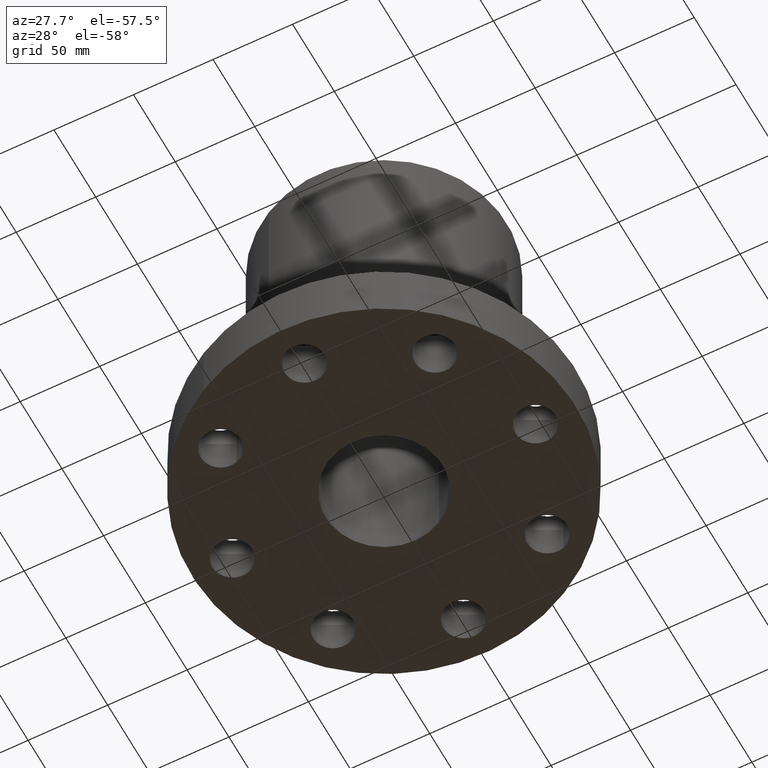
[diagram: clean part render]
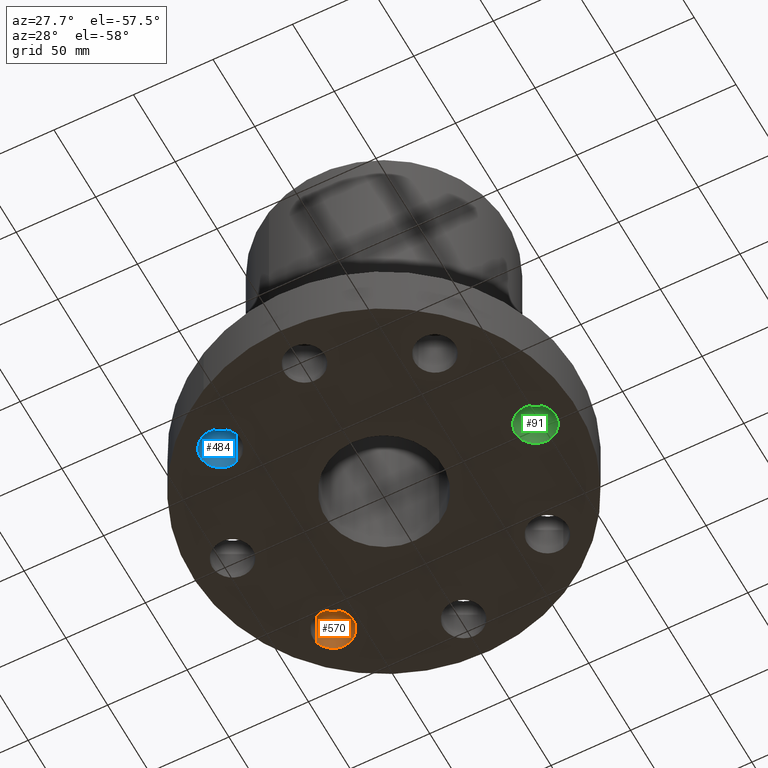
[diagram: same view with three faces highlighted in distinct colors, each labeled with its STEP entity id]
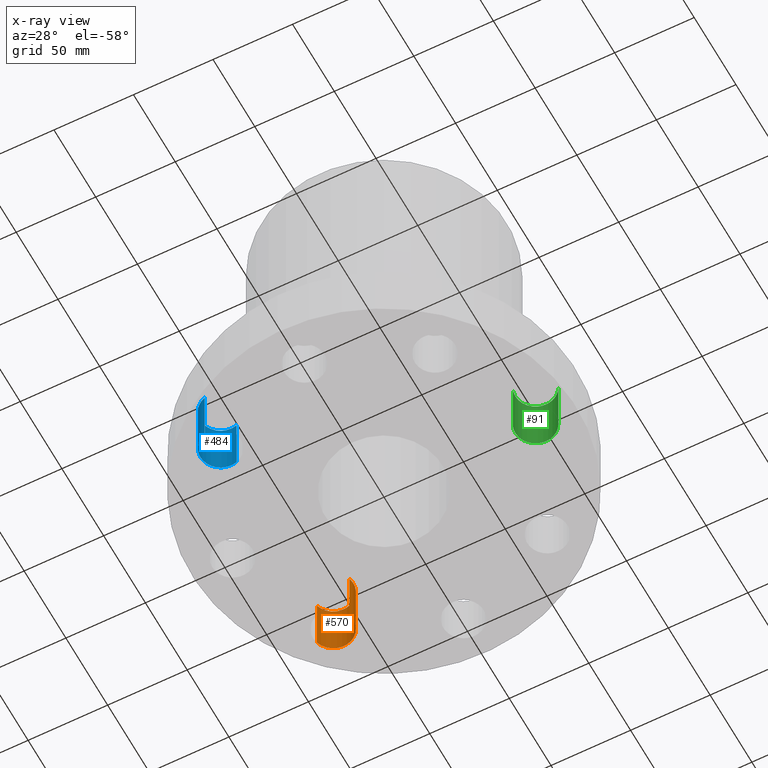
[diagram: x-ray of the same camera — body ghosted, the three highlighted faces saturated]
A machine part, auxiliary view with three faces highlighted in distinct colors.
The next image is the same camera in x-ray (body ghosted, the three faces saturated) — at least one of them is partly hidden behind the body in this view.
Their STEP definitions:

[orange] entity #570 — the highlighted cylindrical surface (edge-blend (fillet) strip) has radius 12.7 mm, axis along (0, 0, 1).
#220=AXIS2_PLACEMENT_3D('Circle Axis2P3D',#218,#219,$) ;
#543=AXIS2_PLACEMENT_3D('Cylinder Axis2P3D',#540,#541,#542) ;
#561=AXIS2_PLACEMENT_3D('Circle Axis2P3D',#559,#560,$) ;
#213=CARTESIAN_POINT('Vertex',(-2.17187561447,2.51088066389,1.50000000001)) ;
#215=CARTESIAN_POINT('Vertex',(-3.13142524445,2.79242019503,1.50000000001)) ;
#218=CARTESIAN_POINT('Axis2P3D Location',(-2.65165042946,2.65165042946,1.50000000001)) ;
#540=CARTESIAN_POINT('Axis2P3D Location',(-2.65165042946,2.65165042946,0.00393700787402)) ;
#545=CARTESIAN_POINT('Line Origine',(-2.17187561447,2.51088066389,0.750000000003)) ;
#549=CARTESIAN_POINT('Vertex',(-2.17187561447,2.51088066389,2.2401153548E-016)) ;
#552=CARTESIAN_POINT('Line Origine',(-3.13142524445,2.79242019503,0.750000000003)) ;
#556=CARTESIAN_POINT('Vertex',(-3.13142524445,2.79242019503,2.2401153548E-016)) ;
#559=CARTESIAN_POINT('Axis2P3D Location',(-2.65165042946,2.65165042946,0.)) ;
#219=DIRECTION('Axis2P3D Direction',(0.,0.,-0.0393700787402)) ;
#541=DIRECTION('Axis2P3D Direction',(0.,0.,0.0393700787402)) ;
#542=DIRECTION('Axis2P3D XDirection',(-0.0377775444876,0.0110842335096,0.)) ;
#546=DIRECTION('Vector Direction',(0.,0.,0.0393700787402)) ;
#553=DIRECTION('Vector Direction',(0.,0.,0.0393700787402)) ;
#560=DIRECTION('Axis2P3D Direction',(0.,0.,0.0393700787402)) ;
#547=VECTOR('Line Direction',#546,0.0393700787402) ;
#554=VECTOR('Line Direction',#553,0.0393700787402) ;
#565=ORIENTED_EDGE('',*,*,#551,.F.) ;
#566=ORIENTED_EDGE('',*,*,#222,.F.) ;
#567=ORIENTED_EDGE('',*,*,#558,.T.) ;
#568=ORIENTED_EDGE('',*,*,#563,.T.) ;
#570=ADVANCED_FACE('PartBody',(#569),#544,.F.) ;
#221=CIRCLE('generated circle',#220,0.500000000002) ;
#562=CIRCLE('generated circle',#561,0.500000000002) ;
#544=CYLINDRICAL_SURFACE('generated cylinder',#543,0.500000000002) ;
#222=EDGE_CURVE('',#216,#214,#221,.T.) ;
#551=EDGE_CURVE('',#214,#550,#548,.F.) ;
#558=EDGE_CURVE('',#216,#557,#555,.F.) ;
#563=EDGE_CURVE('',#557,#550,#562,.F.) ;
#564=EDGE_LOOP('',(#565,#566,#567,#568)) ;
#569=FACE_OUTER_BOUND('',#564,.T.) ;
#548=LINE('Line',#545,#547) ;
#555=LINE('Line',#552,#554) ;
#214=VERTEX_POINT('',#213) ;
#216=VERTEX_POINT('',#215) ;
#550=VERTEX_POINT('',#549) ;
#557=VERTEX_POINT('',#556) ;

[blue] entity #484 — the highlighted cylindrical surface (edge-blend (fillet) strip) has radius 12.7 mm, axis along (0, 0, 1).
#184=AXIS2_PLACEMENT_3D('Circle Axis2P3D',#182,#183,$) ;
#457=AXIS2_PLACEMENT_3D('Cylinder Axis2P3D',#454,#455,#456) ;
#475=AXIS2_PLACEMENT_3D('Circle Axis2P3D',#473,#474,$) ;
#177=CARTESIAN_POINT('Vertex',(-2.51088066389,-2.17187561447,1.50000000001)) ;
#179=CARTESIAN_POINT('Vertex',(-2.79242019503,-3.13142524445,1.50000000001)) ;
#182=CARTESIAN_POINT('Axis2P3D Location',(-2.65165042946,-2.65165042946,1.50000000001)) ;
#454=CARTESIAN_POINT('Axis2P3D Location',(-2.65165042946,-2.65165042946,0.00393700787402)) ;
#459=CARTESIAN_POINT('Line Origine',(-2.51088066389,-2.17187561447,0.750000000003)) ;
#463=CARTESIAN_POINT('Vertex',(-2.51088066389,-2.17187561447,2.2401153548E-016)) ;
#466=CARTESIAN_POINT('Line Origine',(-2.79242019503,-3.13142524445,0.750000000003)) ;
#470=CARTESIAN_POINT('Vertex',(-2.79242019503,-3.13142524445,2.2401153548E-016)) ;
#473=CARTESIAN_POINT('Axis2P3D Location',(-2.65165042946,-2.65165042946,0.)) ;
#183=DIRECTION('Axis2P3D Direction',(0.,0.,-0.0393700787402)) ;
#455=DIRECTION('Axis2P3D Direction',(0.,0.,0.0393700787402)) ;
#456=DIRECTION('Axis2P3D XDirection',(-0.0110842335096,-0.0377775444876,0.)) ;
#460=DIRECTION('Vector Direction',(0.,0.,0.0393700787402)) ;
#467=DIRECTION('Vector Direction',(0.,0.,0.0393700787402)) ;
#474=DIRECTION('Axis2P3D Direction',(0.,0.,0.0393700787402)) ;
#461=VECTOR('Line Direction',#460,0.0393700787402) ;
#468=VECTOR('Line Direction',#467,0.0393700787402) ;
#479=ORIENTED_EDGE('',*,*,#465,.F.) ;
#480=ORIENTED_EDGE('',*,*,#186,.F.) ;
#481=ORIENTED_EDGE('',*,*,#472,.T.) ;
#482=ORIENTED_EDGE('',*,*,#477,.T.) ;
#484=ADVANCED_FACE('PartBody',(#483),#458,.F.) ;
#185=CIRCLE('generated circle',#184,0.500000000002) ;
#476=CIRCLE('generated circle',#475,0.500000000002) ;
#458=CYLINDRICAL_SURFACE('generated cylinder',#457,0.500000000002) ;
#186=EDGE_CURVE('',#180,#178,#185,.T.) ;
#465=EDGE_CURVE('',#178,#464,#462,.F.) ;
#472=EDGE_CURVE('',#180,#471,#469,.F.) ;
#477=EDGE_CURVE('',#471,#464,#476,.F.) ;
#478=EDGE_LOOP('',(#479,#480,#481,#482)) ;
#483=FACE_OUTER_BOUND('',#478,.T.) ;
#462=LINE('Line',#459,#461) ;
#469=LINE('Line',#466,#468) ;
#178=VERTEX_POINT('',#177) ;
#180=VERTEX_POINT('',#179) ;
#464=VERTEX_POINT('',#463) ;
#471=VERTEX_POINT('',#470) ;

[green] entity #91 — the highlighted cylindrical surface (edge-blend (fillet) strip) has radius 12.7 mm, axis along (0, -0, 1).
#38=AXIS2_PLACEMENT_3D('Cylinder Axis2P3D',#35,#36,#37) ;
#77=AXIS2_PLACEMENT_3D('Circle Axis2P3D',#75,#76,$) ;
#82=AXIS2_PLACEMENT_3D('Circle Axis2P3D',#80,#81,$) ;
#35=CARTESIAN_POINT('Axis2P3D Location',(3.75000000002,0.,0.00393700787402)) ;
#40=CARTESIAN_POINT('Line Origine',(3.31120871907,-0.239712769303,0.750000000003)) ;
#44=CARTESIAN_POINT('Vertex',(3.31120871907,-0.239712769303,1.50000000001)) ;
#46=CARTESIAN_POINT('Vertex',(3.31120871907,-0.239712769303,2.2401153548E-016)) ;
#53=CARTESIAN_POINT('Vertex',(4.18879128096,0.239712769303,1.50000000001)) ;
#56=CARTESIAN_POINT('Line Origine',(4.18879128096,0.239712769303,0.750000000003)) ;
#60=CARTESIAN_POINT('Vertex',(4.18879128096,0.239712769303,2.2401153548E-016)) ;
#75=CARTESIAN_POINT('Axis2P3D Location',(3.75000000002,0.,1.50000000001)) ;
#80=CARTESIAN_POINT('Axis2P3D Location',(3.75000000002,0.,0.)) ;
#36=DIRECTION('Axis2P3D Direction',(0.,-0.,0.0393700787402)) ;
#37=DIRECTION('Axis2P3D XDirection',(0.0345504945626,0.0188750212049,0.)) ;
#41=DIRECTION('Vector Direction',(0.,0.,0.0393700787402)) ;
#57=DIRECTION('Vector Direction',(0.,0.,0.0393700787402)) ;
#76=DIRECTION('Axis2P3D Direction',(0.,-0.,0.0393700787402)) ;
#81=DIRECTION('Axis2P3D Direction',(0.,-0.,0.0393700787402)) ;
#42=VECTOR('Line Direction',#41,0.0393700787402) ;
#58=VECTOR('Line Direction',#57,0.0393700787402) ;
#86=ORIENTED_EDGE('',*,*,#62,.F.) ;
#87=ORIENTED_EDGE('',*,*,#79,.F.) ;
#88=ORIENTED_EDGE('',*,*,#48,.T.) ;
#89=ORIENTED_EDGE('',*,*,#84,.T.) ;
#91=ADVANCED_FACE('PartBody',(#90),#39,.F.) ;
#78=CIRCLE('generated circle',#77,0.500000000002) ;
#83=CIRCLE('generated circle',#82,0.500000000002) ;
#39=CYLINDRICAL_SURFACE('generated cylinder',#38,0.500000000002) ;
#48=EDGE_CURVE('',#45,#47,#43,.F.) ;
#62=EDGE_CURVE('',#54,#61,#59,.F.) ;
#79=EDGE_CURVE('',#45,#54,#78,.F.) ;
#84=EDGE_CURVE('',#47,#61,#83,.F.) ;
#85=EDGE_LOOP('',(#86,#87,#88,#89)) ;
#90=FACE_OUTER_BOUND('',#85,.T.) ;
#43=LINE('Line',#40,#42) ;
#59=LINE('Line',#56,#58) ;
#45=VERTEX_POINT('',#44) ;
#47=VERTEX_POINT('',#46) ;
#54=VERTEX_POINT('',#53) ;
#61=VERTEX_POINT('',#60) ;